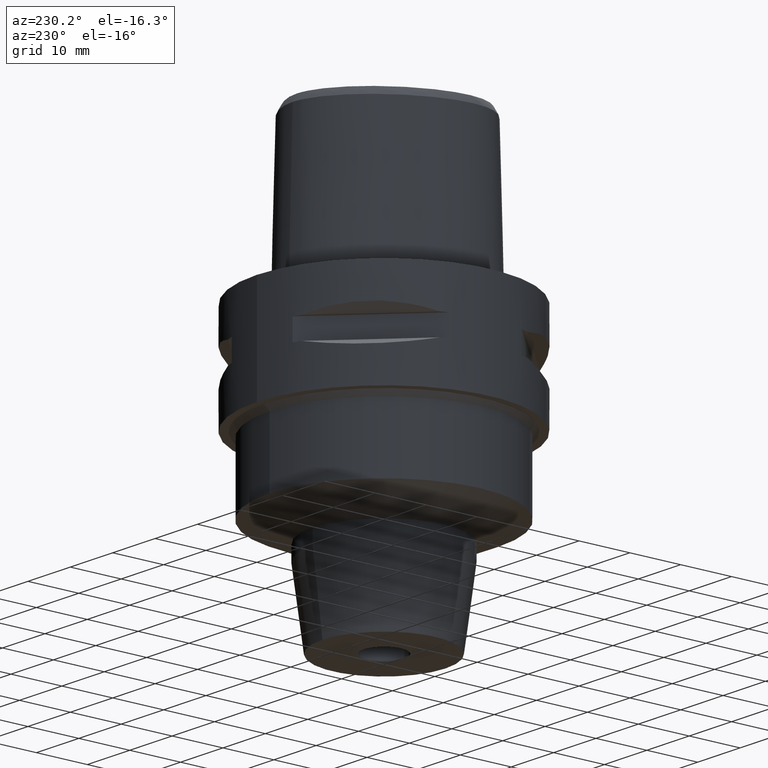
[diagram: clean part render]
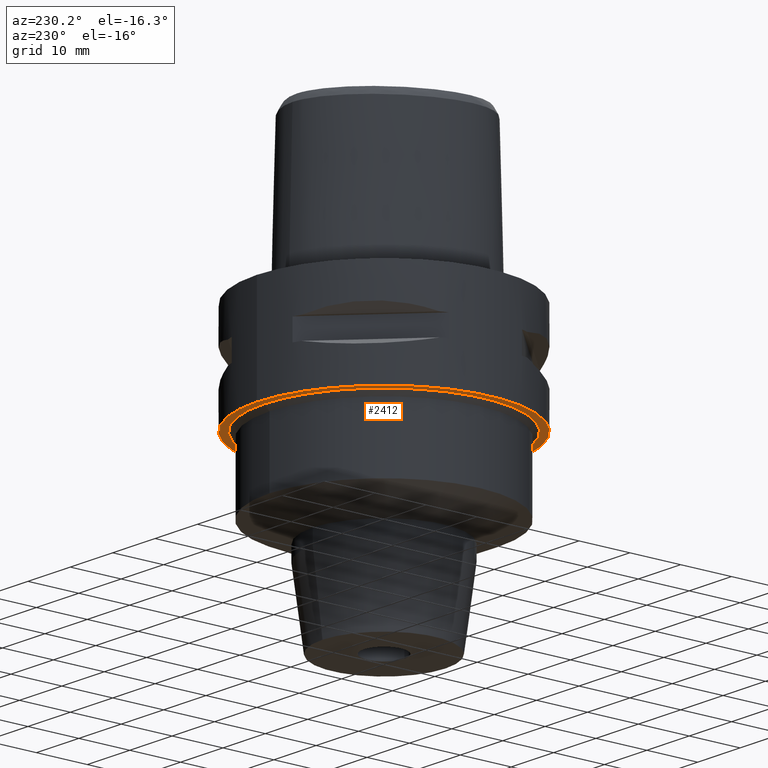
[diagram: same view with one face highlighted and labeled with its STEP entity id]
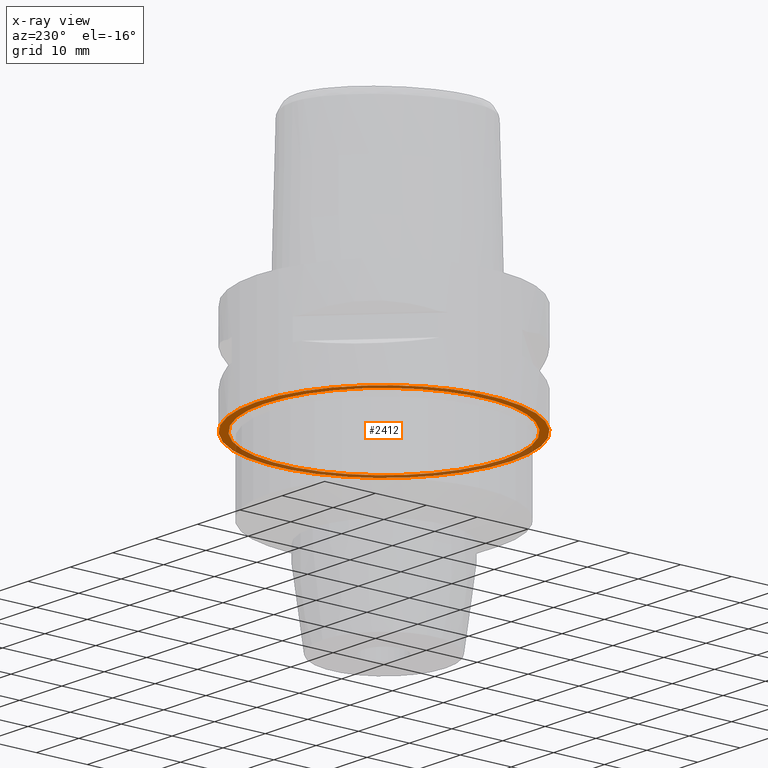
[diagram: x-ray of the same camera — body ghosted, the highlighted face saturated]
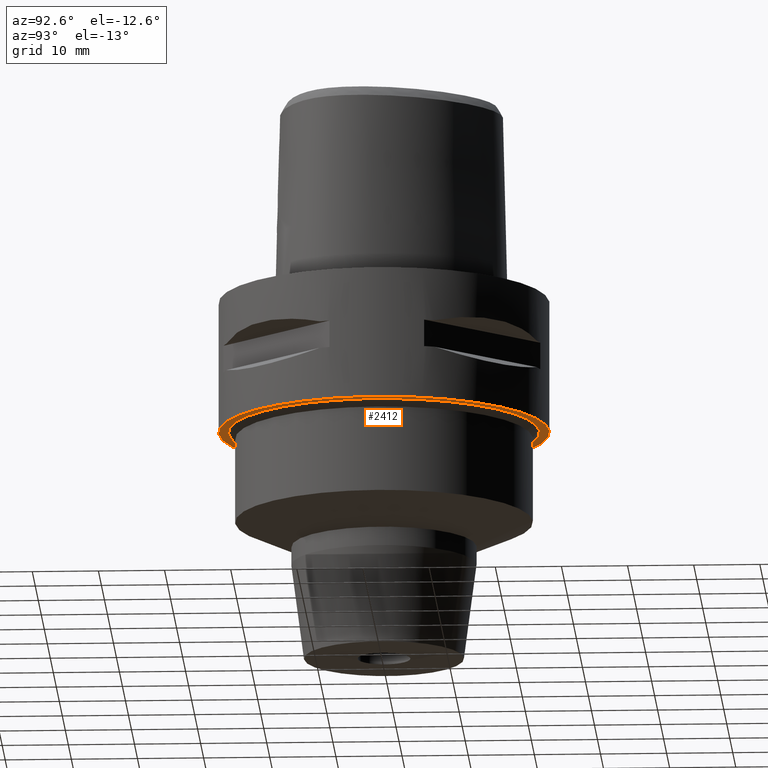
[diagram: same view with one face highlighted and labeled with its STEP entity id]
A machine part, auxiliary view. The second image highlights one B-rep face of the part: STEP entity #2412.
The next image is the same camera in x-ray: the body ghosted, the highlighted face saturated — about 38% of this face is hidden behind the body in this view.
A second angle (auxiliary view) of the same face is appended — the face is thin or edge-on in the first view.
In plain terms, the highlighted planar face has unit normal (0, 0, -1).
Its self-contained STEP definition (entity closure, byte-faithful):
#508=CARTESIAN_POINT('',(0.E0,1.258324586124E-14,-2.E1));
#509=DIRECTION('',(0.E0,0.E0,1.E0));
#510=DIRECTION('',(0.E0,-1.E0,0.E0));
#511=AXIS2_PLACEMENT_3D('',#508,#509,#510);
#516=CARTESIAN_POINT('',(0.E0,1.258324586124E-14,-2.E1));
#517=DIRECTION('',(0.E0,0.E0,1.E0));
#518=DIRECTION('',(0.E0,1.E0,0.E0));
#519=AXIS2_PLACEMENT_3D('',#516,#517,#518);
#524=CARTESIAN_POINT('',(0.E0,0.E0,-2.E1));
#525=DIRECTION('',(0.E0,0.E0,-1.E0));
#526=DIRECTION('',(0.E0,-1.E0,0.E0));
#527=AXIS2_PLACEMENT_3D('',#524,#525,#526);
#532=CARTESIAN_POINT('',(0.E0,0.E0,-2.E1));
#533=DIRECTION('',(0.E0,0.E0,-1.E0));
#534=DIRECTION('',(0.E0,1.E0,0.E0));
#535=AXIS2_PLACEMENT_3D('',#532,#533,#534);
#1523=CARTESIAN_POINT('',(0.E0,2.5E1,-2.E1));
#1524=VERTEX_POINT('',#1523);
#1525=CARTESIAN_POINT('',(0.E0,-2.5E1,-2.E1));
#1526=VERTEX_POINT('',#1525);
#1579=CARTESIAN_POINT('',(0.E0,-2.35E1,-2.E1));
#1580=CARTESIAN_POINT('',(0.E0,2.35E1,-2.E1));
#1581=VERTEX_POINT('',#1579);
#1582=VERTEX_POINT('',#1580);
#2397=CARTESIAN_POINT('',(0.E0,0.E0,-2.E1));
#2398=DIRECTION('',(0.E0,0.E0,-1.E0));
#2399=DIRECTION('',(0.E0,-1.E0,0.E0));
#2400=AXIS2_PLACEMENT_3D('',#2397,#2398,#2399);
#2401=PLANE('',#2400);
#2402=ORIENTED_EDGE('',*,*,#2354,.T.);
#2403=ORIENTED_EDGE('',*,*,#2307,.T.);
#2404=EDGE_LOOP('',(#2402,#2403));
#2405=FACE_OUTER_BOUND('',#2404,.F.);
#2407=ORIENTED_EDGE('',*,*,#2406,.T.);
#2409=ORIENTED_EDGE('',*,*,#2408,.T.);
#2410=EDGE_LOOP('',(#2407,#2409));
#2411=FACE_BOUND('',#2410,.F.);
#512=CIRCLE('',#511,2.5E1);
#520=CIRCLE('',#519,2.5E1);
#528=CIRCLE('',#527,2.35E1);
#536=CIRCLE('',#535,2.35E1);
#2307=EDGE_CURVE('',#1524,#1526,#520,.T.);
#2354=EDGE_CURVE('',#1526,#1524,#512,.T.);
#2406=EDGE_CURVE('',#1581,#1582,#528,.T.);
#2408=EDGE_CURVE('',#1582,#1581,#536,.T.);
#2412=ADVANCED_FACE('',(#2405,#2411),#2401,.T.);